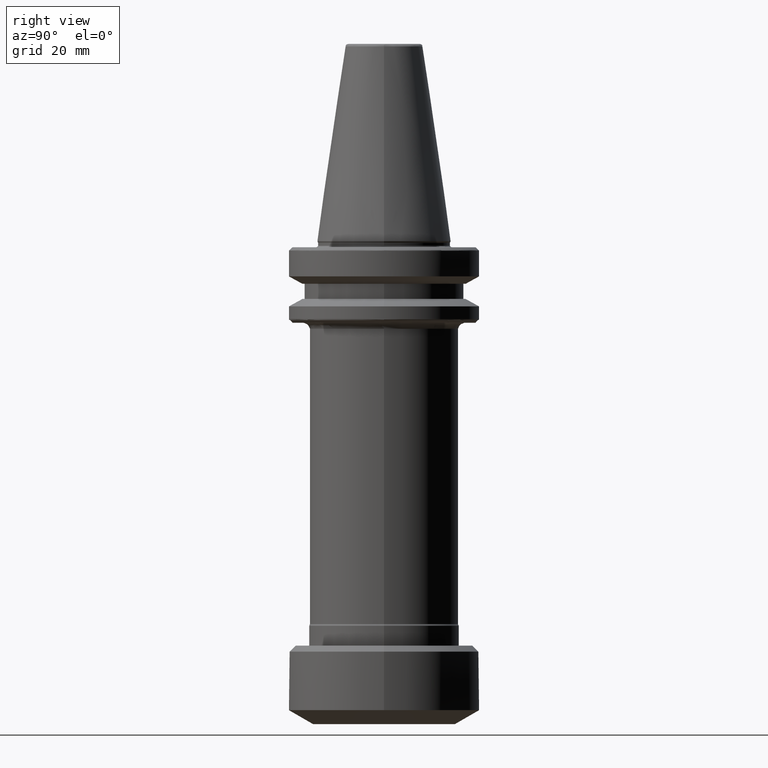
[diagram: clean part render]
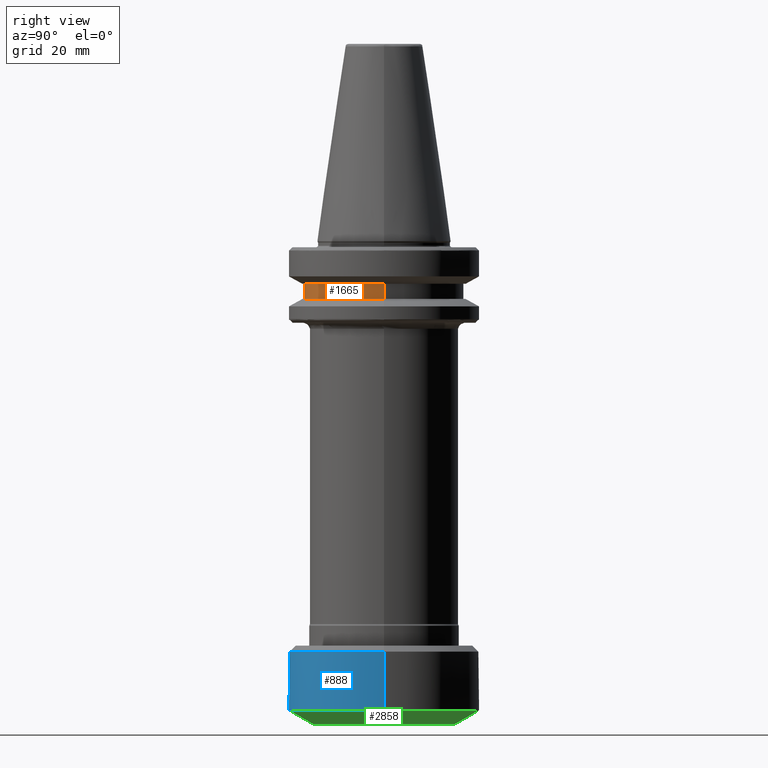
[diagram: same view with three faces highlighted in distinct colors, each labeled with its STEP entity id]
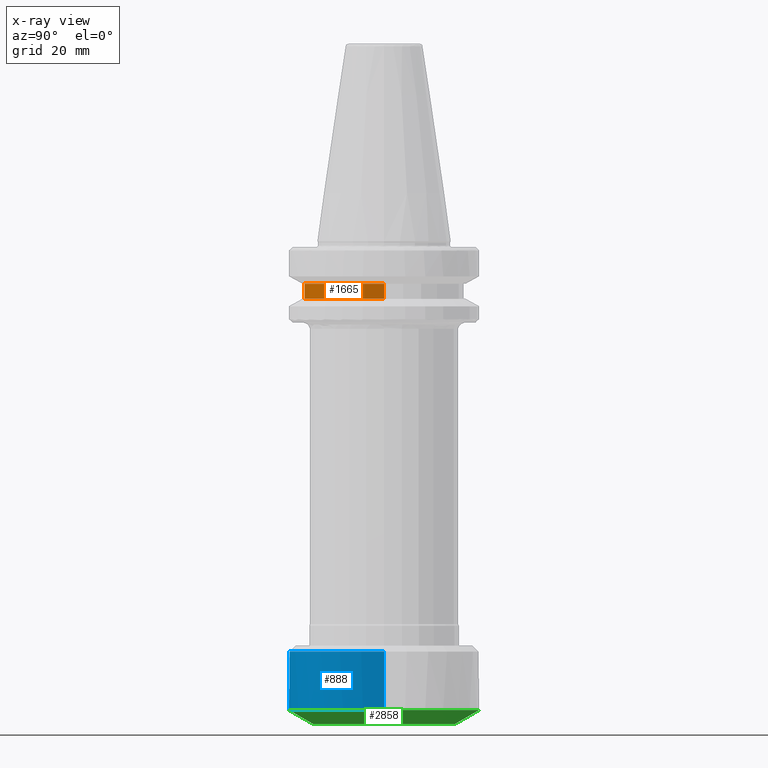
[diagram: x-ray of the same camera — body ghosted, the three highlighted faces saturated]
A machine part, right view with three faces highlighted in distinct colors.
The next image is the same camera in x-ray (body ghosted, the three faces saturated) — at least one of them is partly hidden behind the body in this view.
Their STEP definitions:

[orange] entity #1665 — the highlighted cylindrical surface (partial cylindrical patch) has radius 26.5 mm, axis along (0, 0, 1).
#63 = FACE_OUTER_BOUND ( 'NONE', #2209, .T. ) ;
#112 = AXIS2_PLACEMENT_3D ( 'NONE', #1852, #267, #2129 ) ;
#140 = EDGE_CURVE ( 'NONE', #2136, #264, #2952, .T. ) ;
#149 = CARTESIAN_POINT ( 'NONE',  ( 26.50000000000000000, 0.0000000000000000000, -19.10000000000000500 ) ) ;
#240 = DIRECTION ( 'NONE',  ( 0.0000000000000000000, 0.0000000000000000000, 1.000000000000000000 ) ) ;
#248 = ORIENTED_EDGE ( 'NONE', *, *, #2401, .F. ) ;
#264 = VERTEX_POINT ( 'NONE', #3165 ) ;
#267 = DIRECTION ( 'NONE',  ( 0.0000000000000000000, 0.0000000000000000000, 1.000000000000000000 ) ) ;
#530 = VECTOR ( 'NONE', #240, 1000.000000000000000 ) ;
#609 = CIRCLE ( 'NONE', #112, 26.50000000000000000 ) ;
#613 = CARTESIAN_POINT ( 'NONE',  ( 26.50000000000000000, 0.0000000000000000000, -14.10000000000000100 ) ) ;
#778 = CARTESIAN_POINT ( 'NONE',  ( -26.50000000000000000, 3.245314017740485800E-015, -19.10000000000000100 ) ) ;
#805 = ORIENTED_EDGE ( 'NONE', *, *, #1566, .F. ) ;
#812 = DIRECTION ( 'NONE',  ( 0.0000000000000000000, 0.0000000000000000000, 1.000000000000000000 ) ) ;
#841 = VECTOR ( 'NONE', #1839, 1000.000000000000000 ) ;
#884 = ORIENTED_EDGE ( 'NONE', *, *, #1441, .T. ) ;
#1025 = AXIS2_PLACEMENT_3D ( 'NONE', #2891, #1029, #2618 ) ;
#1028 = CARTESIAN_POINT ( 'NONE',  ( 26.50000000000000000, 0.0000000000000000000, -19.10000000000000100 ) ) ;
#1029 = DIRECTION ( 'NONE',  ( -0.0000000000000000000, -0.0000000000000000000, -1.000000000000000000 ) ) ;
#1101 = CARTESIAN_POINT ( 'NONE',  ( 0.0000000000000000000, 0.0000000000000000000, -19.10000000000000100 ) ) ;
#1228 = LINE ( 'NONE', #1028, #530 ) ;
#1251 = LINE ( 'NONE', #778, #841 ) ;
#1359 = DIRECTION ( 'NONE',  ( 1.000000000000000000, 0.0000000000000000000, 0.0000000000000000000 ) ) ;
#1377 = VERTEX_POINT ( 'NONE', #2588 ) ;
#1441 = EDGE_CURVE ( 'NONE', #2136, #2594, #1228, .T. ) ;
#1457 = ORIENTED_EDGE ( 'NONE', *, *, #140, .F. ) ;
#1566 = EDGE_CURVE ( 'NONE', #1377, #2594, #609, .T. ) ;
#1665 = ADVANCED_FACE ( 'NONE', ( #63 ), #1975, .T. ) ;
#1839 = DIRECTION ( 'NONE',  ( 0.0000000000000000000, 0.0000000000000000000, 1.000000000000000000 ) ) ;
#1852 = CARTESIAN_POINT ( 'NONE',  ( 0.0000000000000000000, 0.0000000000000000000, -14.10000000000000100 ) ) ;
#1975 = CYLINDRICAL_SURFACE ( 'NONE', #2084, 26.50000000000000000 ) ;
#2084 = AXIS2_PLACEMENT_3D ( 'NONE', #1101, #812, #1359 ) ;
#2129 = DIRECTION ( 'NONE',  ( 1.000000000000000000, 0.0000000000000000000, 0.0000000000000000000 ) ) ;
#2136 = VERTEX_POINT ( 'NONE', #149 ) ;
#2209 = EDGE_LOOP ( 'NONE', ( #248, #1457, #884, #805 ) ) ;
#2401 = EDGE_CURVE ( 'NONE', #264, #1377, #1251, .T. ) ;
#2588 = CARTESIAN_POINT ( 'NONE',  ( -26.50000000000000000, 3.245314017740485800E-015, -14.10000000000000100 ) ) ;
#2594 = VERTEX_POINT ( 'NONE', #613 ) ;
#2618 = DIRECTION ( 'NONE',  ( 1.000000000000000000, 0.0000000000000000000, 0.0000000000000000000 ) ) ;
#2891 = CARTESIAN_POINT ( 'NONE',  ( 0.0000000000000000000, 0.0000000000000000000, -19.10000000000000500 ) ) ;
#2952 = CIRCLE ( 'NONE', #1025, 26.50000000000000000 ) ;
#3165 = CARTESIAN_POINT ( 'NONE',  ( -26.50000000000000000, 3.245314017740485800E-015, -19.10000000000000500 ) ) ;

[blue] entity #888 — the highlighted cylindrical surface (partial cylindrical patch) has radius 31.5 mm, axis along (0, -0, 1).
#33 = ORIENTED_EDGE ( 'NONE', *, *, #2754, .T. ) ;
#132 = VERTEX_POINT ( 'NONE', #1827 ) ;
#227 = CYLINDRICAL_SURFACE ( 'NONE', #1092, 31.50000000000000000 ) ;
#255 = LINE ( 'NONE', #1682, #1538 ) ;
#261 = VERTEX_POINT ( 'NONE', #768 ) ;
#339 = EDGE_CURVE ( 'NONE', #3219, #132, #584, .T. ) ;
#359 = DIRECTION ( 'NONE',  ( 0.0000000000000000000, -0.0000000000000000000, 1.000000000000000000 ) ) ;
#395 = EDGE_CURVE ( 'NONE', #2400, #3202, #255, .T. ) ;
#463 = CARTESIAN_POINT ( 'NONE',  ( 0.0000000000000000000, 0.0000000000000000000, -155.3811978460000500 ) ) ;
#584 = CIRCLE ( 'NONE', #2626, 31.50000000000000000 ) ;
#664 = AXIS2_PLACEMENT_3D ( 'NONE', #717, #2578, #988 ) ;
#717 = CARTESIAN_POINT ( 'NONE',  ( 0.0000000000000000000, 0.0000000000000000000, -136.0000000000000000 ) ) ;
#718 = ORIENTED_EDGE ( 'NONE', *, *, #1325, .F. ) ;
#768 = CARTESIAN_POINT ( 'NONE',  ( 31.50000000000000000, 3.857637417314162700E-015, -136.0000000000000000 ) ) ;
#865 = DIRECTION ( 'NONE',  ( 1.000000000000000000, 0.0000000000000000000, -8.811293846231401400E-016 ) ) ;
#888 = ADVANCED_FACE ( 'NONE', ( #2782 ), #227, .T. ) ;
#988 = DIRECTION ( 'NONE',  ( 1.000000000000000000, 0.0000000000000000000, 0.0000000000000000000 ) ) ;
#1092 = AXIS2_PLACEMENT_3D ( 'NONE', #463, #1234, #1213 ) ;
#1131 = ORIENTED_EDGE ( 'NONE', *, *, #2757, .T. ) ;
#1187 = DIRECTION ( 'NONE',  ( 0.0000000000000000000, 0.0000000000000000000, 1.000000000000000000 ) ) ;
#1213 = DIRECTION ( 'NONE',  ( 1.000000000000000000, 0.0000000000000000000, 0.0000000000000000000 ) ) ;
#1234 = DIRECTION ( 'NONE',  ( 0.0000000000000000000, -0.0000000000000000000, 1.000000000000000000 ) ) ;
#1256 = EDGE_LOOP ( 'NONE', ( #2249, #33, #1960, #1131, #718 ) ) ;
#1325 = EDGE_CURVE ( 'NONE', #3202, #261, #1764, .T. ) ;
#1429 = CARTESIAN_POINT ( 'NONE',  ( -31.50000000000000000, 0.0000000000000000000, -136.0000000000000000 ) ) ;
#1538 = VECTOR ( 'NONE', #359, 1000.000000000000000 ) ;
#1563 = CARTESIAN_POINT ( 'NONE',  ( -31.50000000000000000, 3.857637417314162700E-015, -155.3811978460000200 ) ) ;
#1682 = CARTESIAN_POINT ( 'NONE',  ( -31.50000000000000000, 3.857637417314162700E-015, -155.3811978460000500 ) ) ;
#1703 = CARTESIAN_POINT ( 'NONE',  ( 31.50000000000000000, 0.0000000000000000000, -155.3811978460000500 ) ) ;
#1764 = CIRCLE ( 'NONE', #664, 31.50000000000000000 ) ;
#1827 = CARTESIAN_POINT ( 'NONE',  ( 31.50000000000000000, 0.0000000000000000000, -155.3811978460000500 ) ) ;
#1876 = AXIS2_PLACEMENT_3D ( 'NONE', #2770, #1187, #3038 ) ;
#1934 = DIRECTION ( 'NONE',  ( 0.0000000000000000000, 0.0000000000000000000, 1.000000000000000000 ) ) ;
#1960 = ORIENTED_EDGE ( 'NONE', *, *, #339, .T. ) ;
#2249 = ORIENTED_EDGE ( 'NONE', *, *, #395, .F. ) ;
#2320 = CARTESIAN_POINT ( 'NONE',  ( 0.0000000000000000000, 0.0000000000000000000, -155.3811978460000200 ) ) ;
#2400 = VERTEX_POINT ( 'NONE', #1563 ) ;
#2508 = DIRECTION ( 'NONE',  ( 0.0000000000000000000, -0.0000000000000000000, 1.000000000000000000 ) ) ;
#2578 = DIRECTION ( 'NONE',  ( 0.0000000000000000000, 0.0000000000000000000, 1.000000000000000000 ) ) ;
#2626 = AXIS2_PLACEMENT_3D ( 'NONE', #2320, #1934, #865 ) ;
#2754 = EDGE_CURVE ( 'NONE', #2400, #3219, #3044, .T. ) ;
#2757 = EDGE_CURVE ( 'NONE', #132, #261, #3142, .T. ) ;
#2770 = CARTESIAN_POINT ( 'NONE',  ( 0.0000000000000000000, 0.0000000000000000000, -155.3811978460000200 ) ) ;
#2782 = FACE_OUTER_BOUND ( 'NONE', #1256, .T. ) ;
#2889 = VECTOR ( 'NONE', #2508, 1000.000000000000000 ) ;
#3038 = DIRECTION ( 'NONE',  ( 1.000000000000000000, 0.0000000000000000000, -8.811293846231401400E-016 ) ) ;
#3044 = CIRCLE ( 'NONE', #1876, 31.50000000000000000 ) ;
#3142 = LINE ( 'NONE', #1703, #2889 ) ;
#3202 = VERTEX_POINT ( 'NONE', #1429 ) ;
#3219 = VERTEX_POINT ( 'NONE', #3308 ) ;
#3308 = CARTESIAN_POINT ( 'NONE',  ( 0.0000000000000000000, -31.50000000000011000, -155.3811978460000200 ) ) ;

[green] entity #2858 — the highlighted conical surface has half-angle 60 deg.
#132 = VERTEX_POINT ( 'NONE', #1827 ) ;
#195 = CARTESIAN_POINT ( 'NONE',  ( 3.857637417314161900E-015, 31.49999999999998600, -155.3811978460000200 ) ) ;
#339 = EDGE_CURVE ( 'NONE', #3219, #132, #584, .T. ) ;
#355 = CARTESIAN_POINT ( 'NONE',  ( 2.877919977996280300E-015, 23.50000000000000000, -159.9999999999999700 ) ) ;
#378 = EDGE_CURVE ( 'NONE', #3169, #3219, #1829, .T. ) ;
#486 = DIRECTION ( 'NONE',  ( -0.0000000000000000000, 5.905441620346577200E-016, -1.000000000000000000 ) ) ;
#584 = CIRCLE ( 'NONE', #2626, 31.50000000000000000 ) ;
#622 = DIRECTION ( 'NONE',  ( 1.060575238697183000E-016, 0.8660254037618000400, 0.5000000000392111900 ) ) ;
#674 = DIRECTION ( 'NONE',  ( 0.0000000000000000000, -5.905441620346577200E-016, 1.000000000000000000 ) ) ;
#738 = DIRECTION ( 'NONE',  ( 0.0000000000000000000, 0.0000000000000000000, 1.000000000000000000 ) ) ;
#754 = VECTOR ( 'NONE', #1883, 1000.000000000000000 ) ;
#789 = EDGE_CURVE ( 'NONE', #132, #1338, #2170, .T. ) ;
#865 = DIRECTION ( 'NONE',  ( 1.000000000000000000, 0.0000000000000000000, -8.811293846231401400E-016 ) ) ;
#944 = AXIS2_PLACEMENT_3D ( 'NONE', #2076, #486, #2333 ) ;
#975 = ORIENTED_EDGE ( 'NONE', *, *, #339, .F. ) ;
#1004 = DIRECTION ( 'NONE',  ( 1.000000000000000000, 0.0000000000000000000, -8.811293846231401400E-016 ) ) ;
#1089 = ORIENTED_EDGE ( 'NONE', *, *, #2649, .T. ) ;
#1178 = EDGE_LOOP ( 'NONE', ( #1614, #1089, #2942, #975, #2133 ) ) ;
#1338 = VERTEX_POINT ( 'NONE', #195 ) ;
#1614 = ORIENTED_EDGE ( 'NONE', *, *, #1985, .F. ) ;
#1676 = CARTESIAN_POINT ( 'NONE',  ( 0.0000000000000000000, -23.49999999999995000, -160.0000000000000300 ) ) ;
#1827 = CARTESIAN_POINT ( 'NONE',  ( 31.50000000000000000, 0.0000000000000000000, -155.3811978460000500 ) ) ;
#1829 = LINE ( 'NONE', #3229, #754 ) ;
#1845 = CONICAL_SURFACE ( 'NONE', #2593, 23.50000000000000000, 1.047197551151321200 ) ;
#1883 = DIRECTION ( 'NONE',  ( 0.0000000000000000000, -0.8660254037618007100, 0.5000000000392100800 ) ) ;
#1934 = DIRECTION ( 'NONE',  ( 0.0000000000000000000, 0.0000000000000000000, 1.000000000000000000 ) ) ;
#1970 = VERTEX_POINT ( 'NONE', #2831 ) ;
#1985 = EDGE_CURVE ( 'NONE', #1970, #3169, #3128, .T. ) ;
#2076 = CARTESIAN_POINT ( 'NONE',  ( 0.0000000000000000000, 1.656075149710677300E-029, -160.0000000000000300 ) ) ;
#2133 = ORIENTED_EDGE ( 'NONE', *, *, #378, .F. ) ;
#2170 = CIRCLE ( 'NONE', #2210, 31.50000000000000000 ) ;
#2210 = AXIS2_PLACEMENT_3D ( 'NONE', #3122, #738, #1004 ) ;
#2320 = CARTESIAN_POINT ( 'NONE',  ( 0.0000000000000000000, 0.0000000000000000000, -155.3811978460000200 ) ) ;
#2333 = DIRECTION ( 'NONE',  ( 0.0000000000000000000, -1.000000000000000000, 0.0000000000000000000 ) ) ;
#2507 = VECTOR ( 'NONE', #622, 1000.000000000000000 ) ;
#2555 = LINE ( 'NONE', #355, #2507 ) ;
#2593 = AXIS2_PLACEMENT_3D ( 'NONE', #2781, #674, #3313 ) ;
#2626 = AXIS2_PLACEMENT_3D ( 'NONE', #2320, #1934, #865 ) ;
#2649 = EDGE_CURVE ( 'NONE', #1970, #1338, #2555, .T. ) ;
#2781 = CARTESIAN_POINT ( 'NONE',  ( 0.0000000000000000000, 0.0000000000000000000, -160.0000000000000000 ) ) ;
#2831 = CARTESIAN_POINT ( 'NONE',  ( 3.367778697655218500E-015, 23.49999999999995000, -160.0000000000000300 ) ) ;
#2858 = ADVANCED_FACE ( 'NONE', ( #3277 ), #1845, .T. ) ;
#2942 = ORIENTED_EDGE ( 'NONE', *, *, #789, .F. ) ;
#3122 = CARTESIAN_POINT ( 'NONE',  ( 0.0000000000000000000, 0.0000000000000000000, -155.3811978460000200 ) ) ;
#3128 = CIRCLE ( 'NONE', #944, 23.49999999999995000 ) ;
#3169 = VERTEX_POINT ( 'NONE', #1676 ) ;
#3219 = VERTEX_POINT ( 'NONE', #3308 ) ;
#3229 = CARTESIAN_POINT ( 'NONE',  ( 0.0000000000000000000, -23.50000000000000000, -160.0000000000000300 ) ) ;
#3277 = FACE_OUTER_BOUND ( 'NONE', #1178, .T. ) ;
#3308 = CARTESIAN_POINT ( 'NONE',  ( 0.0000000000000000000, -31.50000000000011000, -155.3811978460000200 ) ) ;
#3313 = DIRECTION ( 'NONE',  ( 0.0000000000000000000, -1.000000000000000000, -1.181088324069315400E-015 ) ) ;